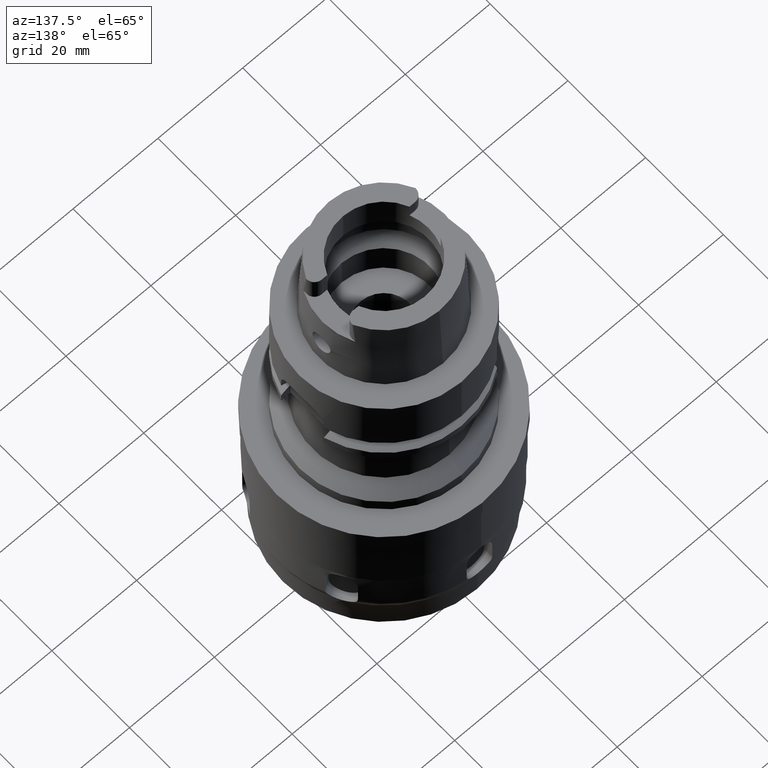
[diagram: clean part render]
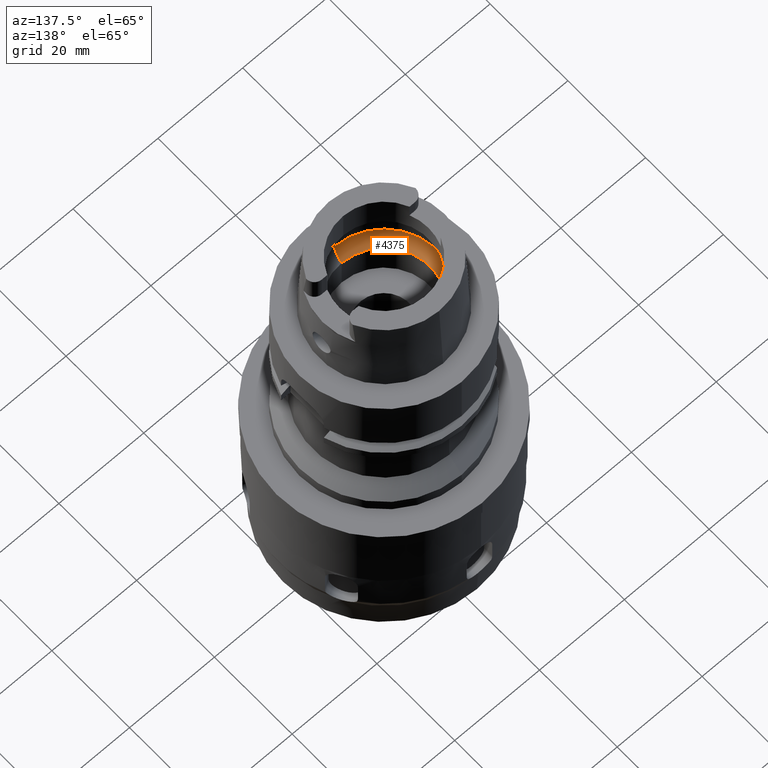
[diagram: same view with one face highlighted and labeled with its STEP entity id]
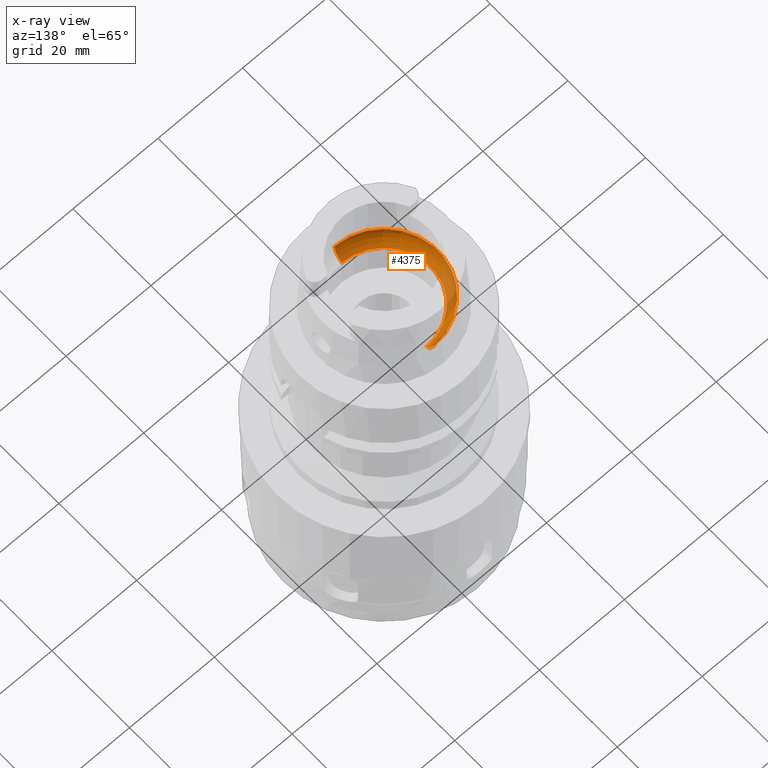
[diagram: x-ray of the same camera — body ghosted, the highlighted face saturated]
A machine part, auxiliary view. The second image highlights one B-rep face of the part: STEP entity #4375.
The next image is the same camera in x-ray: the body ghosted, the highlighted face saturated — about 19% of this face is hidden behind the body in this view.
In plain terms, the highlighted toroidal blend (fillet) surface has major radius 7.75 mm and minor (blend) radius 5 mm.
Its self-contained STEP definition (entity closure, byte-faithful):
#489=CARTESIAN_POINT('',(-1.270998420980E1,-1.009356917308E0,3.933312163513E0));
#532=CARTESIAN_POINT('',(-1.270998420980E1,-1.009356917308E0,3.933312163513E0));
#533=CARTESIAN_POINT('',(-1.271822604802E1,-9.055743684055E-1,
3.882625440641E0));
#534=CARTESIAN_POINT('',(-1.273125747192E1,-6.899593579563E-1,
3.796706671709E0));
#535=CARTESIAN_POINT('',(-1.274221292844E1,-3.492178066840E-1,
3.717717104612E0));
#536=CARTESIAN_POINT('',(-1.274455357708E1,-1.164895712143E-1,3.7E0));
#537=CARTESIAN_POINT('',(-1.274455357708E1,0.E0,3.7E0));
#542=CARTESIAN_POINT('',(-1.274455357708E1,0.E0,3.7E0));
#543=CARTESIAN_POINT('',(-1.274455357708E1,1.164898789878E-1,3.7E0));
#544=CARTESIAN_POINT('',(-1.274221290560E1,3.492184865941E-1,3.717717267405E0));
#545=CARTESIAN_POINT('',(-1.273125751627E1,6.899582059268E-1,3.796706360379E0));
#546=CARTESIAN_POINT('',(-1.271822608499E1,9.055739029613E-1,3.882625213321E0));
#547=CARTESIAN_POINT('',(-1.270998420980E1,1.009356917308E0,3.933312163513E0));
#552=CARTESIAN_POINT('',(0.E0,1.272815980658E-14,3.933312163513E0));
#553=DIRECTION('',(0.E0,0.E0,-1.E0));
#554=DIRECTION('',(-9.968615066513E-1,7.916524841634E-2,0.E0));
#555=AXIS2_PLACEMENT_3D('',#552,#553,#554);
#560=CARTESIAN_POINT('',(0.E0,1.272815980658E-14,5.033650044221E-2));
#561=DIRECTION('',(0.E0,0.E0,1.E0));
#562=DIRECTION('',(0.E0,1.E0,0.E0));
#563=AXIS2_PLACEMENT_3D('',#560,#561,#562);
#568=CARTESIAN_POINT('',(0.E0,-7.75E0,3.933312163513E0));
#569=DIRECTION('',(-1.E0,0.E0,0.E0));
#570=DIRECTION('',(0.E0,-6.3E-1,-7.765951326142E-1));
#571=AXIS2_PLACEMENT_3D('',#568,#569,#570);
#576=CARTESIAN_POINT('',(0.E0,1.272815980658E-14,3.933312163513E0));
#577=DIRECTION('',(0.E0,0.E0,-1.E0));
#578=DIRECTION('',(0.E0,-1.E0,0.E0));
#579=AXIS2_PLACEMENT_3D('',#576,#577,#578);
#610=CARTESIAN_POINT('',(0.E0,7.75E0,3.933312163513E0));
#611=DIRECTION('',(1.E0,0.E0,0.E0));
#612=DIRECTION('',(0.E0,6.3E-1,-7.765951326142E-1));
#613=AXIS2_PLACEMENT_3D('',#610,#611,#612);
#3590=VERTEX_POINT('',#489);
#3591=CARTESIAN_POINT('',(0.E0,-1.275E1,3.933312163513E0));
#3592=VERTEX_POINT('',#3591);
#3593=CARTESIAN_POINT('',(0.E0,1.275E1,3.933312163513E0));
#3594=VERTEX_POINT('',#3593);
#3595=CARTESIAN_POINT('',(-1.270998420980E1,1.009356917308E0,3.933312163513E0));
#3596=VERTEX_POINT('',#3595);
#3600=CARTESIAN_POINT('',(-1.274455357708E1,0.E0,3.7E0));
#3601=VERTEX_POINT('',#3600);
#3603=CARTESIAN_POINT('',(0.E0,-1.09E1,5.033650044221E-2));
#3604=VERTEX_POINT('',#3603);
#3605=CARTESIAN_POINT('',(0.E0,1.09E1,5.033650044221E-2));
#3606=VERTEX_POINT('',#3605);
#4358=CARTESIAN_POINT('',(0.E0,1.272815980658E-14,3.933312163513E0));
#4359=DIRECTION('',(0.E0,0.E0,-1.E0));
#4360=DIRECTION('',(0.E0,-1.E0,0.E0));
#4361=AXIS2_PLACEMENT_3D('',#4358,#4359,#4360);
#4362=TOROIDAL_SURFACE('',#4361,7.75E0,5.E0);
#4363=ORIENTED_EDGE('',*,*,#4339,.T.);
#4364=ORIENTED_EDGE('',*,*,#4350,.T.);
#4365=ORIENTED_EDGE('',*,*,#4321,.T.);
#4367=ORIENTED_EDGE('',*,*,#4366,.F.);
#4369=ORIENTED_EDGE('',*,*,#4368,.T.);
#4371=ORIENTED_EDGE('',*,*,#4370,.T.);
#4372=ORIENTED_EDGE('',*,*,#4314,.T.);
#4373=EDGE_LOOP('',(#4363,#4364,#4365,#4367,#4369,#4371,#4372));
#4374=FACE_OUTER_BOUND('',#4373,.F.);
#538=B_SPLINE_CURVE_WITH_KNOTS('',3,(#532,#533,#534,#535,#536,#537),
.UNSPECIFIED.,.F.,.F.,(4,1,1,4),(0.E0,3.333333333333E-1,6.666666666667E-1,1.E0),
.UNSPECIFIED.);
#548=B_SPLINE_CURVE_WITH_KNOTS('',3,(#542,#543,#544,#545,#546,#547),
.UNSPECIFIED.,.F.,.F.,(4,1,1,4),(0.E0,3.333333333333E-1,6.666666666667E-1,1.E0),
.UNSPECIFIED.);
#556=CIRCLE('',#555,1.275E1);
#564=CIRCLE('',#563,1.09E1);
#572=CIRCLE('',#571,5.E0);
#580=CIRCLE('',#579,1.275E1);
#614=CIRCLE('',#613,5.E0);
#4314=EDGE_CURVE('',#3592,#3590,#580,.T.);
#4321=EDGE_CURVE('',#3596,#3594,#556,.T.);
#4339=EDGE_CURVE('',#3590,#3601,#538,.T.);
#4350=EDGE_CURVE('',#3601,#3596,#548,.T.);
#4366=EDGE_CURVE('',#3606,#3594,#614,.T.);
#4368=EDGE_CURVE('',#3606,#3604,#564,.T.);
#4370=EDGE_CURVE('',#3604,#3592,#572,.T.);
#4375=ADVANCED_FACE('',(#4374),#4362,.F.);